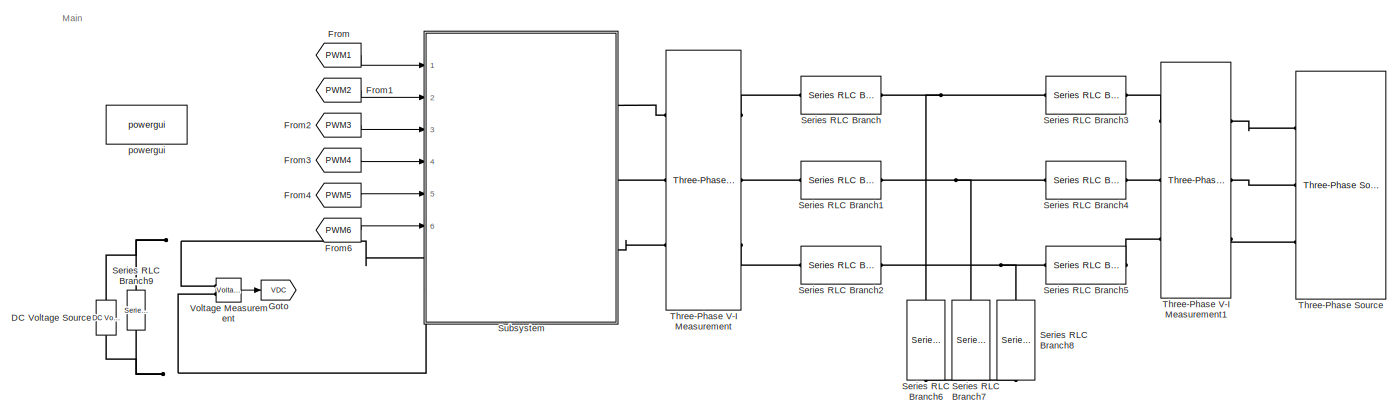
[diagram: root canvas - part 1/5, top center region]
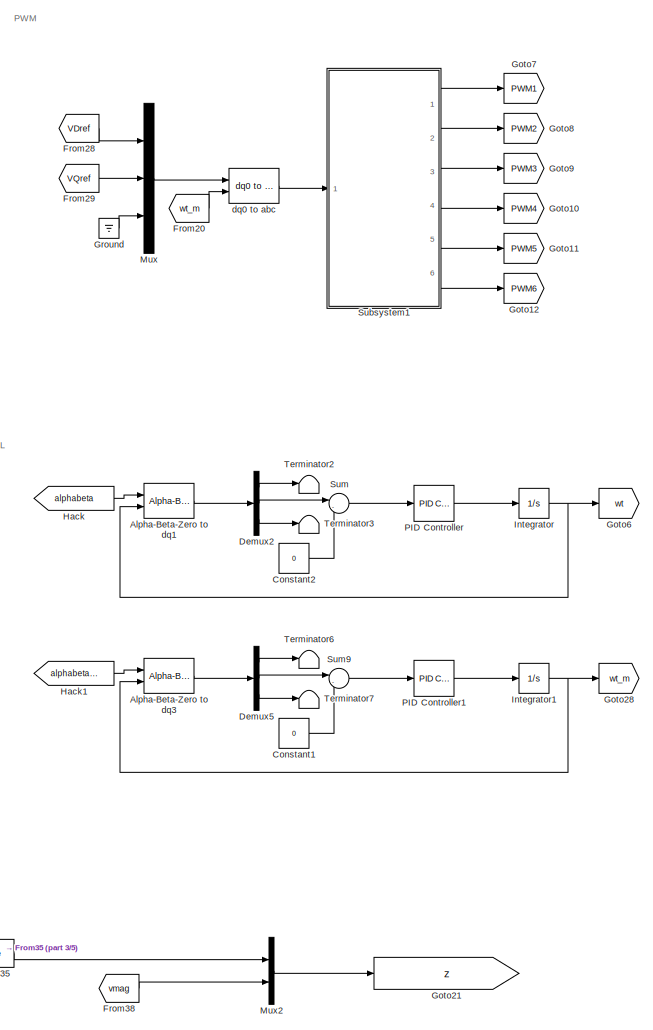
[diagram: root canvas - part 2/5, right side, full height]
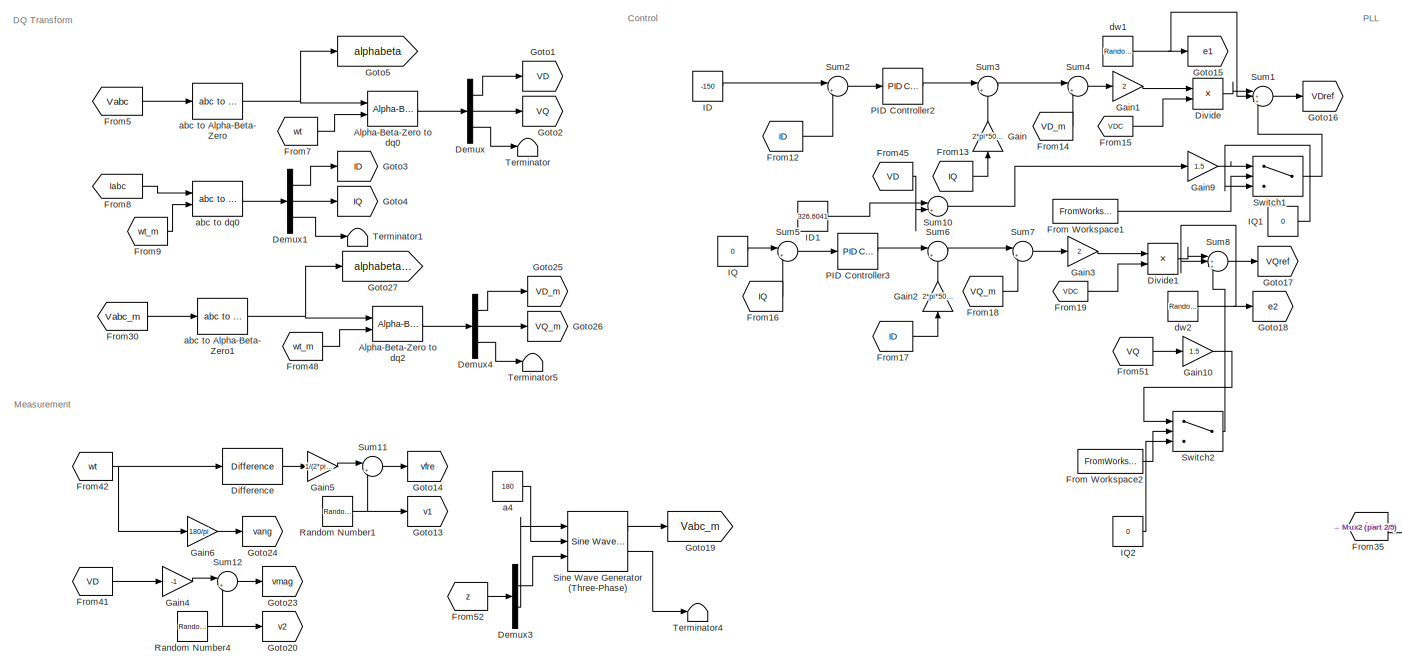
[diagram: root canvas - part 3/5, central region]
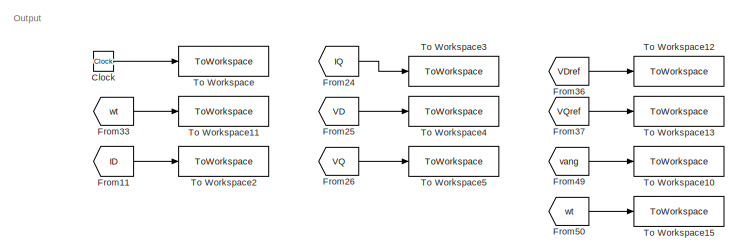
[diagram: root canvas - part 4/5, bottom left region]
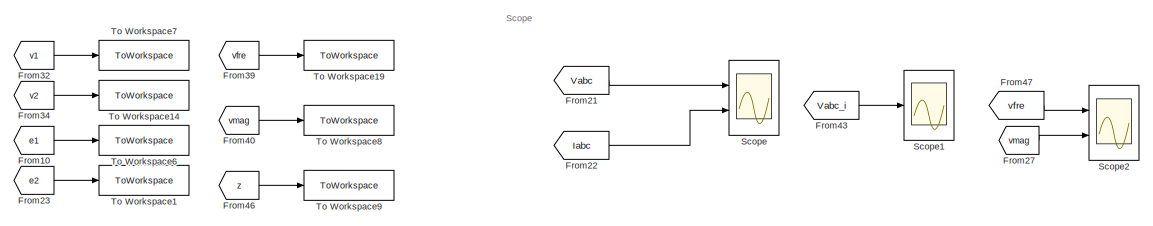
[diagram: root canvas - part 5/5, bottom right region]
MODEL slx_b20bf43b7437
KIND model
CONFIG AbsTol = auto
CONFIG EnableMultiTasking = off
CONFIG FixedStep = 1e-6
CONFIG MaxStep = auto
CONFIG MinStep = auto
CONFIG RelTol = 1e-3
CONFIG SampleTimeConstraint = Unconstrained
CONFIG SolverName = FixedStepAuto
CONFIG StartTime = 0.0
CONFIG StopTime = 0.1
WORKSPACE source: mxarray member
WORKSPACE lambda = 0.9
BLOCK [Reference] Alpha-Beta-Zero to dq0  REF=spsAlphaBetaZerotodq0Lib/Alpha-Beta-Zero
to dq0
  Ports = [2, 1]
  SourceBlock = spsAlphaBetaZerotodq0Lib/Alpha-Beta-Zero\nto dq0
  SourceProductBaseCode = PS
  SourceType = Alpha-Beta-Zero to dq0 Transformation
BLOCK [Reference] Alpha-Beta-Zero to dq1  REF=spsAlphaBetaZerotodq0Lib/Alpha-Beta-Zero
to dq0
  Ports = [2, 1]
  SourceBlock = spsAlphaBetaZerotodq0Lib/Alpha-Beta-Zero\nto dq0
  SourceProductBaseCode = PS
  SourceType = Alpha-Beta-Zero to dq0 Transformation
BLOCK [Reference] Alpha-Beta-Zero to dq2  REF=spsAlphaBetaZerotodq0Lib/Alpha-Beta-Zero
to dq0
  Ports = [2, 1]
  SourceBlock = spsAlphaBetaZerotodq0Lib/Alpha-Beta-Zero\nto dq0
  SourceProductBaseCode = PS
  SourceType = Alpha-Beta-Zero to dq0 Transformation
BLOCK [Reference] Alpha-Beta-Zero to dq3  REF=spsAlphaBetaZerotodq0Lib/Alpha-Beta-Zero
to dq0
  Ports = [2, 1]
  SourceBlock = spsAlphaBetaZerotodq0Lib/Alpha-Beta-Zero\nto dq0
  SourceProductBaseCode = PS
  SourceType = Alpha-Beta-Zero to dq0 Transformation
BLOCK [Clock] Clock
BLOCK [Constant] Constant1
  Value = 0
BLOCK [Constant] Constant2
  Value = 0
BLOCK [Reference] DC Voltage Source  REF=spsDCVoltageSourceLib/DC Voltage Source
  Ports = [0, 0, 0, 0, 0, 1, 1]
  SourceBlock = spsDCVoltageSourceLib/DC Voltage Source
  SourceProductBaseCode = PS
  SourceType = DC Voltage Source
BLOCK [Demux] Demux
  Outputs = 3
  Ports = [1, 3]
BLOCK [Demux] Demux1
  Outputs = 3
  Ports = [1, 3]
BLOCK [Demux] Demux2
  Outputs = 3
  Ports = [1, 3]
BLOCK [Demux] Demux3
  Outputs = 2
  Ports = [1, 2]
BLOCK [Demux] Demux4
  Outputs = 3
  Ports = [1, 3]
BLOCK [Demux] Demux5
  Outputs = 3
  Ports = [1, 3]
BLOCK [Reference] Difference  REF=simulink/Discrete/Difference
  Ports = [1, 1]
  SourceBlock = simulink/Discrete/Difference
  SourceProductBaseCode = SL
  SourceType = Difference
BLOCK [Product] Divide
  Inputs = */
  Ports = [2, 1]
BLOCK [Product] Divide1
  Inputs = */
  Ports = [2, 1]
BLOCK [From] From
  GotoTag = PWM1
BLOCK [FromWorkspace] From Workspace1
  SampleTime = 1e-6
  VariableName = Attack_time
BLOCK [FromWorkspace] From Workspace2
  SampleTime = 1e-6
  VariableName = Attack_time
BLOCK [From] From1
  GotoTag = PWM2
BLOCK [From] From10
  GotoTag = e1
BLOCK [From] From11
  GotoTag = ID
BLOCK [From] From12
  GotoTag = ID
BLOCK [From] From13
  GotoTag = IQ
BLOCK [From] From14
  GotoTag = VD_m
BLOCK [From] From15
  GotoTag = VDC
BLOCK [From] From16
  GotoTag = IQ
BLOCK [From] From17
  GotoTag = ID
BLOCK [From] From18
  GotoTag = VQ_m
BLOCK [From] From19
  GotoTag = VDC
BLOCK [From] From2
  GotoTag = PWM3
BLOCK [From] From20
  GotoTag = wt_m
BLOCK [From] From21
  GotoTag = Vabc
  TagVisibility = global
BLOCK [From] From22
  GotoTag = Iabc
  TagVisibility = global
BLOCK [From] From23
  GotoTag = e2
BLOCK [From] From24
  GotoTag = IQ
BLOCK [From] From25
  GotoTag = VD
BLOCK [From] From26
  GotoTag = VQ
BLOCK [From] From27
  GotoTag = vmag
BLOCK [From] From28
  GotoTag = VDref
BLOCK [From] From29
  GotoTag = VQref
BLOCK [From] From3
  GotoTag = PWM4
BLOCK [From] From30
  GotoTag = Vabc_m
BLOCK [From] From32
  GotoTag = v1
BLOCK [From] From33
  GotoTag = wt
BLOCK [From] From34
  GotoTag = v2
BLOCK [From] From35
  GotoTag = vfre
BLOCK [From] From36
  GotoTag = VDref
BLOCK [From] From37
  GotoTag = VQref
BLOCK [From] From38
  GotoTag = vmag
BLOCK [From] From39
  GotoTag = vfre
BLOCK [From] From4
  GotoTag = PWM5
BLOCK [From] From40
  GotoTag = vmag
BLOCK [From] From41
  GotoTag = VD
BLOCK [From] From42
  GotoTag = wt
BLOCK [From] From43
  GotoTag = Vabc_i
  TagVisibility = global
BLOCK [From] From45
  GotoTag = VD
BLOCK [From] From46
  GotoTag = z
BLOCK [From] From47
  GotoTag = vfre
BLOCK [From] From48
  GotoTag = wt_m
BLOCK [From] From49
  GotoTag = vang
BLOCK [From] From5
  GotoTag = Vabc
  TagVisibility = global
BLOCK [From] From50
  GotoTag = wt
BLOCK [From] From51
  GotoTag = VQ
BLOCK [From] From52
  GotoTag = z
BLOCK [From] From6
  GotoTag = PWM6
BLOCK [From] From7
  GotoTag = wt
BLOCK [From] From8
  GotoTag = Iabc
  TagVisibility = global
BLOCK [From] From9
  GotoTag = wt_m
BLOCK [Gain] Gain
  Gain = 2*pi*50*1000e-6
  NameLocation = right
BLOCK [Gain] Gain1
  Gain = 2
BLOCK [Gain] Gain10
  Gain = 1.5
BLOCK [Gain] Gain2
  Gain = 2*pi*50*1000e-6
  NameLocation = right
BLOCK [Gain] Gain3
  Gain = 2
BLOCK [Gain] Gain4
  Gain = -1
BLOCK [Gain] Gain5
  Gain = 1/(2*pi*1e-06)
BLOCK [Gain] Gain6
  Gain = 180/pi
BLOCK [Gain] Gain9
  Gain = 1.5
BLOCK [Goto] Goto
  GotoTag = VDC
BLOCK [Goto] Goto1
  GotoTag = VD
BLOCK [Goto] Goto10
  GotoTag = PWM4
BLOCK [Goto] Goto11
  GotoTag = PWM5
BLOCK [Goto] Goto12
  GotoTag = PWM6
BLOCK [Goto] Goto13
  GotoTag = v1
BLOCK [Goto] Goto14
  GotoTag = vfre
BLOCK [Goto] Goto15
  GotoTag = e1
BLOCK [Goto] Goto16
  GotoTag = VDref
BLOCK [Goto] Goto17
  GotoTag = VQref
BLOCK [Goto] Goto18
  GotoTag = e2
BLOCK [Goto] Goto19
  GotoTag = Vabc_m
BLOCK [Goto] Goto2
  GotoTag = VQ
BLOCK [Goto] Goto20
  GotoTag = v2
BLOCK [Goto] Goto21
  GotoTag = z
BLOCK [Goto] Goto23
  GotoTag = vmag
BLOCK [Goto] Goto24
  GotoTag = vang
BLOCK [Goto] Goto25
  GotoTag = VD_m
BLOCK [Goto] Goto26
  GotoTag = VQ_m
BLOCK [Goto] Goto27
  GotoTag = alphabeta_m
BLOCK [Goto] Goto28
  GotoTag = wt_m
BLOCK [Goto] Goto3
  GotoTag = ID
BLOCK [Goto] Goto4
  GotoTag = IQ
BLOCK [Goto] Goto5
  GotoTag = alphabeta
BLOCK [Goto] Goto6
  GotoTag = wt
BLOCK [Goto] Goto7
  GotoTag = PWM1
BLOCK [Goto] Goto8
  GotoTag = PWM2
BLOCK [Goto] Goto9
  GotoTag = PWM3
BLOCK [Ground] Ground
BLOCK [From] Hack
  GotoTag = alphabeta
BLOCK [From] Hack1
  GotoTag = alphabeta_m
BLOCK [Constant] ID
  Value = -150
BLOCK [Constant] ID1
  Value = 326.6041
BLOCK [Constant] IQ
  Value = 0
BLOCK [Constant] IQ1
  Value = 0
BLOCK [Constant] IQ2
  Value = 0
BLOCK [Integrator] Integrator
  Ports = [1, 1]
BLOCK [Integrator] Integrator1
  Ports = [1, 1]
BLOCK [Mux] Mux
  DisplayOption = bar
  Inputs = 3
  Ports = [3, 1]
BLOCK [Mux] Mux2
  DisplayOption = bar
  Inputs = 2
  Ports = [2, 1]
BLOCK [Reference] PID Controller  REF=slpidlib/PID Controller
  Ports = [1, 1]
  SourceBlock = slpidlib/PID Controller
  SourceProductBaseCode = SL
  SourceType = PID 1dof
BLOCK [Reference] PID Controller1  REF=slpidlib/PID Controller
  Ports = [1, 1]
  SourceBlock = slpidlib/PID Controller
  SourceProductBaseCode = SL
  SourceType = PID 1dof
BLOCK [Reference] PID Controller2  REF=slpidlib/PID Controller
  Ports = [1, 1]
  SourceBlock = slpidlib/PID Controller
  SourceProductBaseCode = SL
  SourceType = PID 1dof
BLOCK [Reference] PID Controller3  REF=slpidlib/PID Controller
  Ports = [1, 1]
  SourceBlock = slpidlib/PID Controller
  SourceProductBaseCode = SL
  SourceType = PID 1dof
BLOCK [RandomNumber] Random Number1
  SampleTime = 1e-6
  Seed = 1
  Variance = 5e-7
BLOCK [RandomNumber] Random Number4
  SampleTime = 1e-6
  Seed = 2
  Variance = 5e-7
BLOCK [Scope] Scope
  Floating = off
  NumInputPorts = 2
  Ports = [2]
  ScopeSpecificationString = Simulink.scopes.TimeScopeBlockCfg('CurrentConfiguration', extmgr.ConfigurationSet(extmgr.Configuration('Core','General UI',true),extmgr.Configuration('Core','Source UI',true),extmgr.Configuration('Sources','WiredSimulink',true),extmgr.Configuration('Visuals','Time Domain',true,'SerializedDisplays',{struct('MinYLimReal','-409.25416','MaxYLimReal','409.22815','YLabelReal','','MinYLimMag',' 0.00000',...<+2078ch>
BLOCK [Scope] Scope1
  Floating = off
  NumInputPorts = 1
  Ports = [1]
  ScopeSpecificationString = Simulink.scopes.TimeScopeBlockCfg('CurrentConfiguration', extmgr.ConfigurationSet(extmgr.Configuration('Core','General UI',true),extmgr.Configuration('Core','Source UI',true),extmgr.Configuration('Sources','WiredSimulink',true,'DataLoggingVariableName','ScopeData1'),extmgr.Configuration('Visuals','Time Domain',true,'SerializedDisplays',{struct('MinYLimReal','-408.2859','MaxYLimReal','408.47411','Y...<+2086ch>
BLOCK [Scope] Scope2
  Floating = off
  NumInputPorts = 2
  Ports = [2]
  ScopeSpecificationString = Simulink.scopes.TimeScopeBlockCfg('CurrentConfiguration', extmgr.ConfigurationSet(extmgr.Configuration('Core','General UI',true),extmgr.Configuration('Core','Source UI',true),extmgr.Configuration('Sources','WiredSimulink',true,'DataLoggingVariableName','ScopeData1'),extmgr.Configuration('Visuals','Time Domain',true,'SerializedDisplays',{struct('MinYLimReal','55.42497','MaxYLimReal','64.6558','YLab...<+2076ch>
BLOCK [Reference] Series RLC Branch  REF=spsSeriesRLCBranchLib/Series RLC Branch
  Ports = [0, 0, 0, 0, 0, 1, 1]
  SourceBlock = spsSeriesRLCBranchLib/Series RLC Branch
  SourceProductBaseCode = PS
  SourceType = Series RLC Branch
BLOCK [Reference] Series RLC Branch1  REF=spsSeriesRLCBranchLib/Series RLC Branch
  Ports = [0, 0, 0, 0, 0, 1, 1]
  SourceBlock = spsSeriesRLCBranchLib/Series RLC Branch
  SourceProductBaseCode = PS
  SourceType = Series RLC Branch
BLOCK [Reference] Series RLC Branch2  REF=spsSeriesRLCBranchLib/Series RLC Branch
  Ports = [0, 0, 0, 0, 0, 1, 1]
  SourceBlock = spsSeriesRLCBranchLib/Series RLC Branch
  SourceProductBaseCode = PS
  SourceType = Series RLC Branch
BLOCK [Reference] Series RLC Branch3  REF=spsSeriesRLCBranchLib/Series RLC Branch
  Ports = [0, 0, 0, 0, 0, 1, 1]
  SourceBlock = spsSeriesRLCBranchLib/Series RLC Branch
  SourceProductBaseCode = PS
  SourceType = Series RLC Branch
BLOCK [Reference] Series RLC Branch4  REF=spsSeriesRLCBranchLib/Series RLC Branch
  Ports = [0, 0, 0, 0, 0, 1, 1]
  SourceBlock = spsSeriesRLCBranchLib/Series RLC Branch
  SourceProductBaseCode = PS
  SourceType = Series RLC Branch
BLOCK [Reference] Series RLC Branch5  REF=spsSeriesRLCBranchLib/Series RLC Branch
  Ports = [0, 0, 0, 0, 0, 1, 1]
  SourceBlock = spsSeriesRLCBranchLib/Series RLC Branch
  SourceProductBaseCode = PS
  SourceType = Series RLC Branch
BLOCK [Reference] Series RLC Branch6  REF=spsSeriesRLCBranchLib/Series RLC Branch
  NameLocation = left
  Ports = [0, 0, 0, 0, 0, 1, 1]
  SourceBlock = spsSeriesRLCBranchLib/Series RLC Branch
  SourceProductBaseCode = PS
  SourceType = Series RLC Branch
BLOCK [Reference] Series RLC Branch7  REF=spsSeriesRLCBranchLib/Series RLC Branch
  NameLocation = left
  Ports = [0, 0, 0, 0, 0, 1, 1]
  SourceBlock = spsSeriesRLCBranchLib/Series RLC Branch
  SourceProductBaseCode = PS
  SourceType = Series RLC Branch
BLOCK [Reference] Series RLC Branch8  REF=spsSeriesRLCBranchLib/Series RLC Branch
  NameLocation = left
  Ports = [0, 0, 0, 0, 0, 1, 1]
  SourceBlock = spsSeriesRLCBranchLib/Series RLC Branch
  SourceProductBaseCode = PS
  SourceType = Series RLC Branch
BLOCK [Reference] Series RLC Branch9  REF=spsSeriesRLCBranchLib/Series RLC Branch
  NameLocation = left
  Ports = [0, 0, 0, 0, 0, 1, 1]
  SourceBlock = spsSeriesRLCBranchLib/Series RLC Branch
  SourceProductBaseCode = PS
  SourceType = Series RLC Branch
BLOCK [Reference] Sine Wave Generator (Three-Phase)  REF=eeSinGeneratorThreePhase/Sine Wave Generator
(Three-Phase)
  Ports = [3, 2]
  SourceBlock = eeSinGeneratorThreePhase/Sine Wave Generator\n(Three-Phase)
  SourceProductBaseCode = PS
  SourceType = Sine Wave Generator (Three-Phase)
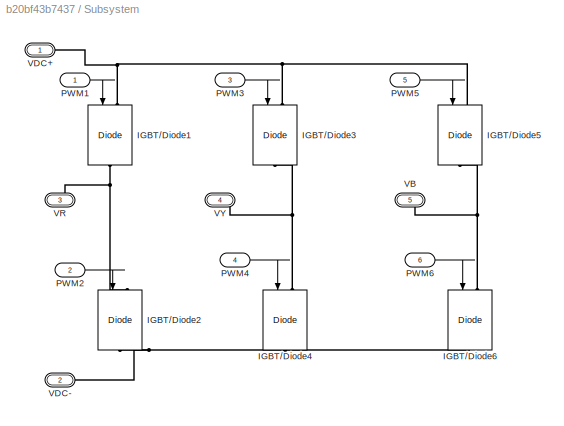
BLOCK [SubSystem] Subsystem
  Ports = [6, 0, 0, 0, 0, 2, 3]
  RequestExecContextInheritance = off
BLOCK [PMIOPort] Subsystem/ VDC+
  Side = Left
BLOCK [PMIOPort] Subsystem/ VDC-
  Port = 2
  Side = Left
BLOCK [Reference] Subsystem/IGBT//Diode1  REF=spsIGBTDiodeLib/IGBT//Diode
  NameLocation = left
  Ports = [1, 0, 0, 0, 0, 1, 1]
  SourceBlock = spsIGBTDiodeLib/IGBT//Diode
  SourceProductBaseCode = PS
  SourceType = IGBT/Diode
BLOCK [Reference] Subsystem/IGBT//Diode2  REF=spsIGBTDiodeLib/IGBT//Diode
  NameLocation = left
  Ports = [1, 0, 0, 0, 0, 1, 1]
  SourceBlock = spsIGBTDiodeLib/IGBT//Diode
  SourceProductBaseCode = PS
  SourceType = IGBT/Diode
BLOCK [Reference] Subsystem/IGBT//Diode3  REF=spsIGBTDiodeLib/IGBT//Diode
  NameLocation = left
  Ports = [1, 0, 0, 0, 0, 1, 1]
  SourceBlock = spsIGBTDiodeLib/IGBT//Diode
  SourceProductBaseCode = PS
  SourceType = IGBT/Diode
BLOCK [Reference] Subsystem/IGBT//Diode4  REF=spsIGBTDiodeLib/IGBT//Diode
  NameLocation = left
  Ports = [1, 0, 0, 0, 0, 1, 1]
  SourceBlock = spsIGBTDiodeLib/IGBT//Diode
  SourceProductBaseCode = PS
  SourceType = IGBT/Diode
BLOCK [Reference] Subsystem/IGBT//Diode5  REF=spsIGBTDiodeLib/IGBT//Diode
  NameLocation = left
  Ports = [1, 0, 0, 0, 0, 1, 1]
  SourceBlock = spsIGBTDiodeLib/IGBT//Diode
  SourceProductBaseCode = PS
  SourceType = IGBT/Diode
BLOCK [Reference] Subsystem/IGBT//Diode6  REF=spsIGBTDiodeLib/IGBT//Diode
  NameLocation = left
  Ports = [1, 0, 0, 0, 0, 1, 1]
  SourceBlock = spsIGBTDiodeLib/IGBT//Diode
  SourceProductBaseCode = PS
  SourceType = IGBT/Diode
BLOCK [Inport] Subsystem/PWM1
BLOCK [Inport] Subsystem/PWM2
  Port = 2
BLOCK [Inport] Subsystem/PWM3
  Port = 3
BLOCK [Inport] Subsystem/PWM4
  Port = 4
BLOCK [Inport] Subsystem/PWM5
  Port = 5
BLOCK [Inport] Subsystem/PWM6
  Port = 6
BLOCK [PMIOPort] Subsystem/VB
  Port = 5
  Side = Right
BLOCK [PMIOPort] Subsystem/VR
  Port = 3
  Side = Right
BLOCK [PMIOPort] Subsystem/VY
  Port = 4
  Side = Right
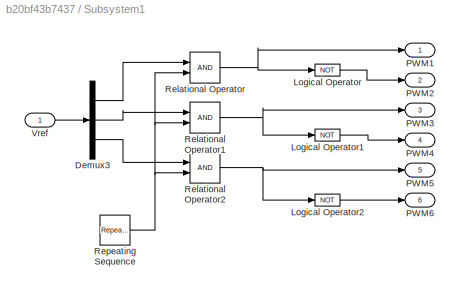
BLOCK [SubSystem] Subsystem1
  Ports = [1, 6]
  RequestExecContextInheritance = off
BLOCK [Demux] Subsystem1/Demux3
  Outputs = 3
  Ports = [1, 3]
BLOCK [Logic] Subsystem1/Logical Operator
  AllPortsSameDT = off
  Operator = NOT
  OutDataTypeStr = boolean
  Ports = [1, 1]
BLOCK [Logic] Subsystem1/Logical Operator1
  AllPortsSameDT = off
  Operator = NOT
  OutDataTypeStr = boolean
  Ports = [1, 1]
BLOCK [Logic] Subsystem1/Logical Operator2
  AllPortsSameDT = off
  Operator = NOT
  OutDataTypeStr = boolean
  Ports = [1, 1]
BLOCK [Outport] Subsystem1/PWM1
BLOCK [Outport] Subsystem1/PWM2
  Port = 2
BLOCK [Outport] Subsystem1/PWM3
  Port = 3
BLOCK [Outport] Subsystem1/PWM4
  Port = 4
BLOCK [Outport] Subsystem1/PWM5
  Port = 5
BLOCK [Outport] Subsystem1/PWM6
  Port = 6
BLOCK [RelationalOperator] Subsystem1/Relational Operator
  InputSameDT = off
  OutDataTypeStr = boolean
  Ports = [2, 1]
  RndMeth = Simplest
BLOCK [RelationalOperator] Subsystem1/Relational Operator1
  InputSameDT = off
  OutDataTypeStr = boolean
  Ports = [2, 1]
  RndMeth = Simplest
BLOCK [RelationalOperator] Subsystem1/Relational Operator2
  InputSameDT = off
  OutDataTypeStr = boolean
  Ports = [2, 1]
  RndMeth = Simplest
BLOCK [Reference] Subsystem1/Repeating Sequence  REF=simulink/Sources/Repeating
Sequence
  Ports = [0, 1]
  SourceBlock = simulink/Sources/Repeating\nSequence
  SourceProductBaseCode = SL
  SourceType = Repeating table
BLOCK [Inport] Subsystem1/Vref
BLOCK [Sum] Sum
  Inputs = |-+
  Ports = [2, 1]
BLOCK [Sum] Sum1
  Inputs = |+++
  Ports = [3, 1]
BLOCK [Sum] Sum10
  Inputs = |++
  Ports = [2, 1]
BLOCK [Sum] Sum11
  Inputs = |++
  Ports = [2, 1]
BLOCK [Sum] Sum12
  Inputs = |++
  Ports = [2, 1]
BLOCK [Sum] Sum2
  Inputs = |+-
  Ports = [2, 1]
BLOCK [Sum] Sum3
  Inputs = |++
  Ports = [2, 1]
BLOCK [Sum] Sum4
  Inputs = |++
  Ports = [2, 1]
BLOCK [Sum] Sum5
  Inputs = |+-
  Ports = [2, 1]
BLOCK [Sum] Sum6
  Inputs = |+-
  Ports = [2, 1]
BLOCK [Sum] Sum7
  Inputs = |++
  Ports = [2, 1]
BLOCK [Sum] Sum8
  Inputs = |+++
  Ports = [3, 1]
BLOCK [Sum] Sum9
  Inputs = |-+
  Ports = [2, 1]
BLOCK [Switch] Switch1
  Criteria = u2 > Threshold
  InputSameDT = off
  SaturateOnIntegerOverflow = off
BLOCK [Switch] Switch2
  Criteria = u2 > Threshold
  InputSameDT = off
  SaturateOnIntegerOverflow = off
BLOCK [Terminator] Terminator
BLOCK [Terminator] Terminator1
BLOCK [Terminator] Terminator2
BLOCK [Terminator] Terminator3
BLOCK [Terminator] Terminator4
BLOCK [Terminator] Terminator5
BLOCK [Terminator] Terminator6
BLOCK [Terminator] Terminator7
BLOCK [Reference] Three-Phase Source  REF=spsThreePhaseSourceLib/Three-Phase Source
  NameLocation = top
  Ports = [0, 0, 0, 0, 0, 0, 3]
  SourceBlock = spsThreePhaseSourceLib/Three-Phase Source
  SourceProductBaseCode = PS
  SourceType = Three-Phase Source
BLOCK [Reference] Three-Phase V-I Measurement  REF=spsThreePhaseVIMeasurementLib/Three-Phase
V-I Measurement
  Ports = [0, 0, 0, 0, 0, 3, 3]
  SourceBlock = spsThreePhaseVIMeasurementLib/Three-Phase\nV-I Measurement
  SourceProductBaseCode = PS
  SourceType = Three-Phase VI Measurement
BLOCK [Reference] Three-Phase V-I Measurement1  REF=spsThreePhaseVIMeasurementLib/Three-Phase
V-I Measurement
  Ports = [0, 0, 0, 0, 0, 3, 3]
  SourceBlock = spsThreePhaseVIMeasurementLib/Three-Phase\nV-I Measurement
  SourceProductBaseCode = PS
  SourceType = Three-Phase VI Measurement
BLOCK [ToWorkspace] To Workspace
  FixptAsFi = on
  MaxDataPoints = inf
  Ports = [1]
  SampleTime = pmuTime
  VariableName = t
BLOCK [ToWorkspace] To Workspace1
  FixptAsFi = on
  MaxDataPoints = inf
  Ports = [1]
  SampleTime = pmuTime
  VariableName = e2
BLOCK [ToWorkspace] To Workspace10
  FixptAsFi = on
  MaxDataPoints = inf
  Ports = [1]
  SampleTime = pmuTime
  VariableName = vang
BLOCK [ToWorkspace] To Workspace11
  FixptAsFi = on
  MaxDataPoints = inf
  Ports = [1]
  SampleTime = pmuTime
  VariableName = w
BLOCK [ToWorkspace] To Workspace12
  FixptAsFi = on
  MaxDataPoints = inf
  Ports = [1]
  SampleTime = pmuTime
  VariableName = vid
BLOCK [ToWorkspace] To Workspace13
  FixptAsFi = on
  MaxDataPoints = inf
  Ports = [1]
  SampleTime = pmuTime
  VariableName = viq
BLOCK [ToWorkspace] To Workspace14
  FixptAsFi = on
  MaxDataPoints = inf
  Ports = [1]
  SampleTime = pmuTime
  VariableName = v2
BLOCK [ToWorkspace] To Workspace15
  FixptAsFi = on
  MaxDataPoints = inf
  Ports = [1]
  SampleTime = pmuTime
  VariableName = wt
BLOCK [ToWorkspace] To Workspace19
  FixptAsFi = on
  MaxDataPoints = inf
  Ports = [1]
  SampleTime = pmuTime
  VariableName = vfre
BLOCK [ToWorkspace] To Workspace2
  FixptAsFi = on
  MaxDataPoints = inf
  Ports = [1]
  SampleTime = pmuTime
  VariableName = id
BLOCK [ToWorkspace] To Workspace3
  FixptAsFi = on
  MaxDataPoints = inf
  Ports = [1]
  SampleTime = pmuTime
  VariableName = iq
BLOCK [ToWorkspace] To Workspace4
  FixptAsFi = on
  MaxDataPoints = inf
  Ports = [1]
  SampleTime = pmuTime
  VariableName = vd
BLOCK [ToWorkspace] To Workspace5
  FixptAsFi = on
  MaxDataPoints = inf
  Ports = [1]
  SampleTime = pmuTime
  VariableName = vq
BLOCK [ToWorkspace] To Workspace6
  FixptAsFi = on
  MaxDataPoints = inf
  Ports = [1]
  SampleTime = pmuTime
  VariableName = e1
BLOCK [ToWorkspace] To Workspace7
  FixptAsFi = on
  MaxDataPoints = inf
  Ports = [1]
  SampleTime = pmuTime
  VariableName = v1
BLOCK [ToWorkspace] To Workspace8
  FixptAsFi = on
  MaxDataPoints = inf
  Ports = [1]
  SampleTime = pmuTime
  VariableName = vmag
BLOCK [ToWorkspace] To Workspace9
  FixptAsFi = on
  MaxDataPoints = inf
  Ports = [1]
  SampleTime = pmuTime
  VariableName = z
BLOCK [Reference] Voltage Measurement  REF=spsVoltageMeasurementLib/Voltage Measurement
  Ports = [0, 1, 0, 0, 0, 2]
  SourceBlock = spsVoltageMeasurementLib/Voltage Measurement
  SourceProductBaseCode = PS
  SourceType = Voltage Measurement
  UserDataPersistent = on
BLOCK [Constant] a4
  Value = 180
BLOCK [Reference] abc to Alpha-Beta-Zero  REF=spsabctoAlphaBetaZeroLib/abc to
Alpha-Beta-Zero
  Ports = [1, 1]
  SourceBlock = spsabctoAlphaBetaZeroLib/abc to\nAlpha-Beta-Zero
  SourceProductBaseCode = PS
  SourceType = abc to Alpha-Beta-Zero Transformation
BLOCK [Reference] abc to Alpha-Beta-Zero1  REF=spsabctoAlphaBetaZeroLib/abc to
Alpha-Beta-Zero
  Ports = [1, 1]
  SourceBlock = spsabctoAlphaBetaZeroLib/abc to\nAlpha-Beta-Zero
  SourceProductBaseCode = PS
  SourceType = abc to Alpha-Beta-Zero Transformation
BLOCK [Reference] abc to dq0  REF=spsabctodq0Lib/abc to dq0
  Ports = [2, 1]
  SourceBlock = spsabctodq0Lib/abc to dq0
  SourceProductBaseCode = PS
  SourceType = abc to dq0 Transformation
BLOCK [Reference] dq0 to abc  REF=spsdq0toabcLib/dq0 to abc
  Ports = [2, 1]
  SourceBlock = spsdq0toabcLib/dq0 to abc
  SourceProductBaseCode = PS
  SourceType = dq0 to abc Transformation
BLOCK [RandomNumber] dw1
  SampleTime = 1e-6
  Seed = 5
  Variance = 1e-4
BLOCK [RandomNumber] dw2
  SampleTime = 1e-6
  Seed = 6
  Variance = 1e-4
BLOCK [Reference] powergui  REF=spspowerguiLib/powergui
  Ports = []
  Priority = 1
  SourceBlock = spspowerguiLib/powergui
  SourceProductBaseCode = PS
  SourceType = PSB option menu block
ANNOTATION (root): Control
ANNOTATION (root): DQ Transform
ANNOTATION (root): Main
ANNOTATION (root): Measurement
ANNOTATION (root): Output
ANNOTATION (root): PLL
ANNOTATION (root): PWM
ANNOTATION (root): Scope
LINE Alpha-Beta-Zero to dq0:1 -> Demux:1
LINE Alpha-Beta-Zero to dq1:1 -> Demux2:1
LINE Alpha-Beta-Zero to dq2:1 -> Demux4:1
LINE Alpha-Beta-Zero to dq3:1 -> Demux5:1
LINE Clock:1 -> To Workspace:1
LINE Constant1:1 -> Sum9:2
LINE Constant2:1 -> Sum:2
LINE Demux1:1 -> Goto3:1
LINE Demux1:2 -> Goto4:1
LINE Demux1:3 -> Terminator1:1
LINE Demux2:1 -> Terminator2:1
LINE Demux2:2 -> Sum:1
LINE Demux2:3 -> Terminator3:1
LINE Demux3:1 -> Sine Wave Generator (Three-Phase):3
LINE Demux3:2 -> Sine Wave Generator (Three-Phase):1
LINE Demux4:1 -> Goto25:1
LINE Demux4:2 -> Goto26:1
LINE Demux4:3 -> Terminator5:1
LINE Demux5:1 -> Terminator6:1
LINE Demux5:2 -> Sum9:1
LINE Demux5:3 -> Terminator7:1
LINE Demux:1 -> Goto1:1
LINE Demux:2 -> Goto2:1
LINE Demux:3 -> Terminator:1
LINE Difference:1 -> Gain5:1
LINE Divide1:1 -> Sum8:1
LINE Divide:1 -> Sum1:1
LINE From Workspace1:1 -> Switch1:2
LINE From Workspace2:1 -> Switch2:2
LINE From10:1 -> To Workspace6:1
LINE From11:1 -> To Workspace2:1
LINE From12:1 -> Sum2:2
LINE From13:1 -> Gain:1
LINE From14:1 -> Sum4:2
LINE From15:1 -> Divide:2
LINE From16:1 -> Sum5:2
LINE From17:1 -> Gain2:1
LINE From18:1 -> Sum7:2
LINE From19:1 -> Divide1:2
LINE From1:1 -> Subsystem:2
LINE From20:1 -> dq0 to abc:2
LINE From21:1 -> Scope:1
LINE From22:1 -> Scope:2
LINE From23:1 -> To Workspace1:1
LINE From24:1 -> To Workspace3:1
LINE From25:1 -> To Workspace4:1
LINE From26:1 -> To Workspace5:1
LINE From27:1 -> Scope2:2
LINE From28:1 -> Mux:1
LINE From29:1 -> Mux:2
LINE From2:1 -> Subsystem:3
LINE From30:1 -> abc to Alpha-Beta-Zero1:1
LINE From32:1 -> To Workspace7:1
LINE From33:1 -> To Workspace11:1
LINE From34:1 -> To Workspace14:1
LINE From35:1 -> Mux2:1
LINE From36:1 -> To Workspace12:1
LINE From37:1 -> To Workspace13:1
LINE From38:1 -> Mux2:2
LINE From39:1 -> To Workspace19:1
LINE From3:1 -> Subsystem:4
LINE From40:1 -> To Workspace8:1
LINE From41:1 -> Gain4:1
NET From42:1 -> Difference:1, Gain6:1
LINE From43:1 -> Scope1:1
LINE From45:1 -> Sum10:2
LINE From46:1 -> To Workspace9:1
LINE From47:1 -> Scope2:1
LINE From48:1 -> Alpha-Beta-Zero to dq2:2
LINE From49:1 -> To Workspace10:1
LINE From4:1 -> Subsystem:5
LINE From50:1 -> To Workspace15:1
LINE From51:1 -> Gain10:1
LINE From52:1 -> Demux3:1
LINE From5:1 -> abc to Alpha-Beta-Zero:1
LINE From6:1 -> Subsystem:6
LINE From7:1 -> Alpha-Beta-Zero to dq0:2
LINE From8:1 -> abc to dq0:1
LINE From9:1 -> abc to dq0:2
LINE From:1 -> Subsystem:1
LINE Gain10:1 -> Switch2:1
LINE Gain1:1 -> Divide:1
LINE Gain2:1 -> Sum6:2
LINE Gain3:1 -> Divide1:1
LINE Gain4:1 -> Sum12:1
LINE Gain5:1 -> Sum11:1
LINE Gain6:1 -> Goto24:1
LINE Gain9:1 -> Switch1:1
LINE Gain:1 -> Sum3:2
LINE Ground:1 -> Mux:3
LINE Hack1:1 -> Alpha-Beta-Zero to dq3:1
LINE Hack:1 -> Alpha-Beta-Zero to dq1:1
LINE ID1:1 -> Sum10:1
LINE ID:1 -> Sum2:1
LINE IQ1:1 -> Switch1:3
LINE IQ2:1 -> Switch2:3
LINE IQ:1 -> Sum5:1
NET Integrator1:1 -> Alpha-Beta-Zero to dq3:2, Goto28:1
NET Integrator:1 -> Alpha-Beta-Zero to dq1:2, Goto6:1
LINE Mux2:1 -> Goto21:1
LINE Mux:1 -> dq0 to abc:1
LINE PID Controller1:1 -> Integrator1:1
LINE PID Controller2:1 -> Sum3:1
LINE PID Controller3:1 -> Sum6:1
LINE PID Controller:1 -> Integrator:1
NET Random Number1:1 -> Goto13:1, Sum11:2
NET Random Number4:1 -> Goto20:1, Sum12:2
LINE Sine Wave Generator (Three-Phase):1 -> Goto19:1
LINE Sine Wave Generator (Three-Phase):2 -> Terminator4:1
LINE Subsystem/PWM1:1 -> Subsystem/IGBT//Diode1:1
LINE Subsystem/PWM2:1 -> Subsystem/IGBT//Diode2:1
LINE Subsystem/PWM3:1 -> Subsystem/IGBT//Diode3:1
LINE Subsystem/PWM4:1 -> Subsystem/IGBT//Diode4:1
LINE Subsystem/PWM5:1 -> Subsystem/IGBT//Diode5:1
LINE Subsystem/PWM6:1 -> Subsystem/IGBT//Diode6:1
LINE Subsystem1/Demux3:1 -> Subsystem1/Relational Operator:1
LINE Subsystem1/Demux3:2 -> Subsystem1/Relational Operator1:1
LINE Subsystem1/Demux3:3 -> Subsystem1/Relational Operator2:1
LINE Subsystem1/Logical Operator1:1 -> Subsystem1/PWM4:1
LINE Subsystem1/Logical Operator2:1 -> Subsystem1/PWM6:1
LINE Subsystem1/Logical Operator:1 -> Subsystem1/PWM2:1
NET Subsystem1/Relational Operator1:1 -> Subsystem1/Logical Operator1:1, Subsystem1/PWM3:1
NET Subsystem1/Relational Operator2:1 -> Subsystem1/Logical Operator2:1, Subsystem1/PWM5:1
NET Subsystem1/Relational Operator:1 -> Subsystem1/Logical Operator:1, Subsystem1/PWM1:1
NET Subsystem1/Repeating Sequence:1 -> Subsystem1/Relational Operator1:2, Subsystem1/Relational Operator2:2, Subsystem1/Relational Operator:2
LINE Subsystem1/Vref:1 -> Subsystem1/Demux3:1
LINE Subsystem1:1 -> Goto7:1
LINE Subsystem1:2 -> Goto8:1
LINE Subsystem1:3 -> Goto9:1
LINE Subsystem1:4 -> Goto10:1
LINE Subsystem1:5 -> Goto11:1
LINE Subsystem1:6 -> Goto12:1
LINE Sum10:1 -> Gain9:1
LINE Sum11:1 -> Goto14:1
LINE Sum12:1 -> Goto23:1
LINE Sum1:1 -> Goto16:1
LINE Sum2:1 -> PID Controller2:1
LINE Sum3:1 -> Sum4:1
LINE Sum4:1 -> Gain1:1
LINE Sum5:1 -> PID Controller3:1
LINE Sum6:1 -> Sum7:1
LINE Sum7:1 -> Gain3:1
LINE Sum8:1 -> Goto17:1
LINE Sum9:1 -> PID Controller1:1
LINE Sum:1 -> PID Controller:1
LINE Switch1:1 -> Sum1:3
LINE Switch2:1 -> Sum8:3
LINE Voltage Measurement:1 -> Goto:1
LINE a4:1 -> Sine Wave Generator (Three-Phase):2
NET abc to Alpha-Beta-Zero1:1 -> Alpha-Beta-Zero to dq2:1, Goto27:1
NET abc to Alpha-Beta-Zero:1 -> Alpha-Beta-Zero to dq0:1, Goto5:1
LINE abc to dq0:1 -> Demux1:1
LINE dq0 to abc:1 -> Subsystem1:1
NET dw1:1 -> Goto15:1, Sum1:2
NET dw2:1 -> Goto18:1, Sum8:2
PNET net1: DC Voltage Source:LConn1 -- Series RLC Branch9:RConn1 -- Subsystem:LConn2 -- Voltage Measurement:LConn2
PNET net2: DC Voltage Source:RConn1 -- Series RLC Branch9:LConn1 -- Subsystem:LConn1 -- Voltage Measurement:LConn1
PLINE Series RLC Branch1:LConn1 -- Three-Phase V-I Measurement:RConn2
PNET net3: Series RLC Branch1:RConn1 -- Series RLC Branch4:LConn1 -- Series RLC Branch7:LConn1
PLINE Series RLC Branch2:LConn1 -- Three-Phase V-I Measurement:RConn3
PNET net4: Series RLC Branch2:RConn1 -- Series RLC Branch5:LConn1 -- Series RLC Branch8:LConn1
PNET net5: Series RLC Branch3:LConn1 -- Series RLC Branch6:LConn1 -- Series RLC Branch:RConn1
PLINE Series RLC Branch3:RConn1 -- Three-Phase V-I Measurement1:RConn1
PLINE Series RLC Branch4:RConn1 -- Three-Phase V-I Measurement1:RConn2
PLINE Series RLC Branch5:RConn1 -- Three-Phase V-I Measurement1:RConn3
PNET net6: Series RLC Branch6:RConn1 -- Series RLC Branch7:RConn1 -- Series RLC Branch8:RConn1
PLINE Series RLC Branch:LConn1 -- Three-Phase V-I Measurement:RConn1
PNET net7: Subsystem/ VDC+:RConn1 -- Subsystem/IGBT//Diode1:LConn1 -- Subsystem/IGBT//Diode3:LConn1 -- Subsystem/IGBT//Diode5:LConn1
PNET net8: Subsystem/ VDC-:RConn1 -- Subsystem/IGBT//Diode2:RConn1 -- Subsystem/IGBT//Diode4:RConn1 -- Subsystem/IGBT//Diode6:RConn1
PNET net9: Subsystem/IGBT//Diode1:RConn1 -- Subsystem/IGBT//Diode2:LConn1 -- Subsystem/VR:RConn1
PNET net10: Subsystem/IGBT//Diode3:RConn1 -- Subsystem/IGBT//Diode4:LConn1 -- Subsystem/VY:RConn1
PNET net11: Subsystem/IGBT//Diode5:RConn1 -- Subsystem/IGBT//Diode6:LConn1 -- Subsystem/VB:RConn1
PLINE Subsystem:RConn1 -- Three-Phase V-I Measurement:LConn1
PLINE Subsystem:RConn2 -- Three-Phase V-I Measurement:LConn2
PLINE Subsystem:RConn3 -- Three-Phase V-I Measurement:LConn3
PLINE Three-Phase Source:RConn1 -- Three-Phase V-I Measurement1:LConn1
PLINE Three-Phase Source:RConn2 -- Three-Phase V-I Measurement1:LConn2
PLINE Three-Phase Source:RConn3 -- Three-Phase V-I Measurement1:LConn3
note: NET lines group one-source signal fan-out (src -> all destinations, sorted); 1:1 wires keep LINE; PNET lines group multi-terminal physical nets as a canonical sorted terminal list (undirected conserving connections); 2-terminal nets keep the pairwise PLINE form
